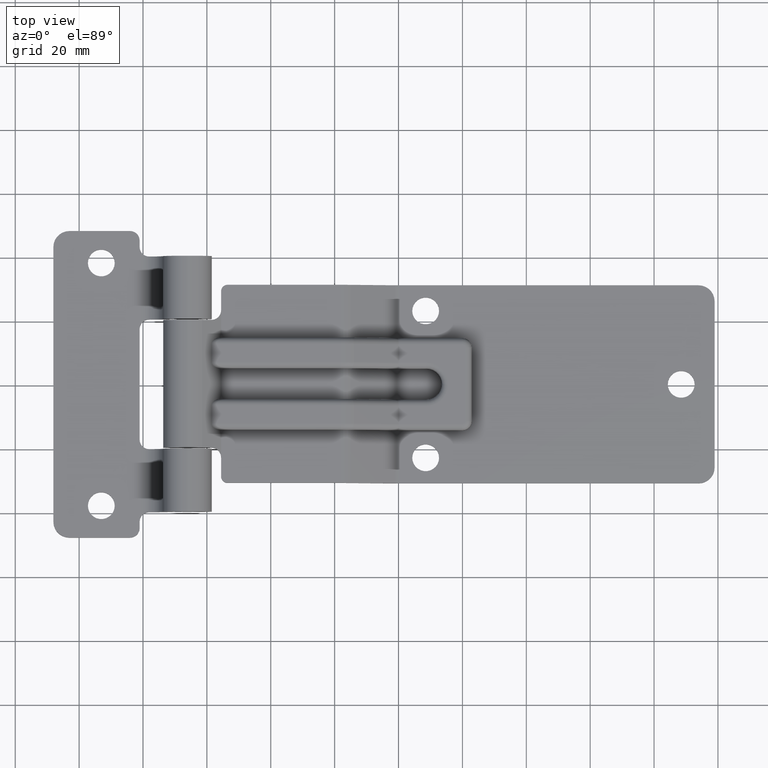
[diagram: clean part render]
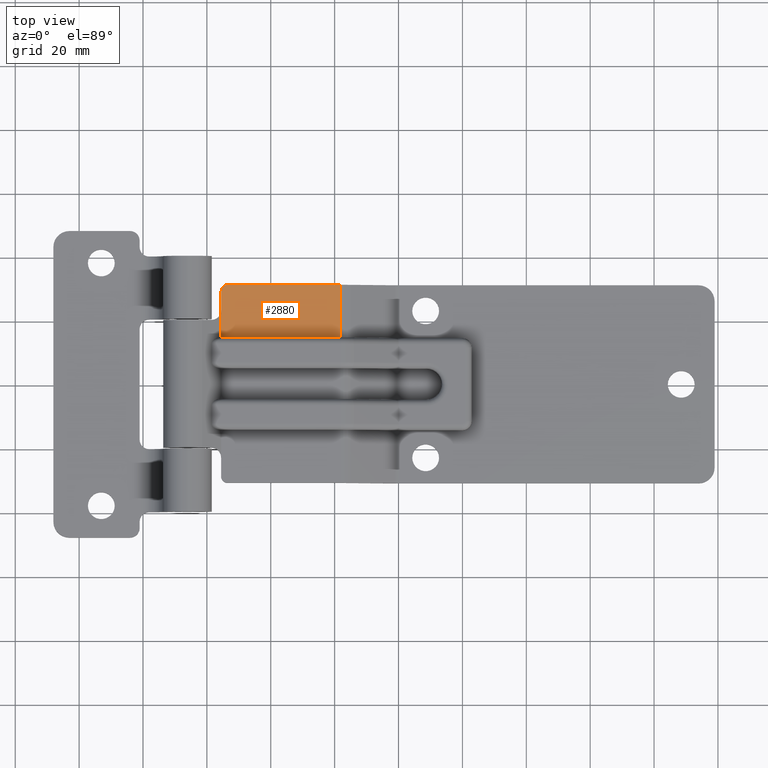
[diagram: same view with one face highlighted and labeled with its STEP entity id]
A machine part, top view. The second image highlights one B-rep face of the part: STEP entity #2880.
In plain terms, the highlighted planar face has unit normal (0, 0, 1).
Its self-contained STEP definition (entity closure, byte-faithful):
#53 = LINE ( 'NONE', #1579, #2407 ) ;
#56 = AXIS2_PLACEMENT_3D ( 'NONE', #2533, #2769, #2763 ) ;
#181 = CARTESIAN_POINT ( 'NONE',  ( 2.000000000000000000, 31.00000000000000000, 4.000000000000000000 ) ) ;
#418 = EDGE_CURVE ( 'NONE', #2000, #2606, #2965, .T. ) ;
#875 = CARTESIAN_POINT ( 'NONE',  ( 0.0000000000000000000, 28.99999999999999600, 4.000000000000000000 ) ) ;
#1049 = CARTESIAN_POINT ( 'NONE',  ( 37.46410161513775700, 14.50000000000000000, 3.999999999999997300 ) ) ;
#1055 = AXIS2_PLACEMENT_3D ( 'NONE', #2950, #4218, #2438 ) ;
#1068 = VECTOR ( 'NONE', #2029, 1000.000000000000000 ) ;
#1569 = DIRECTION ( 'NONE',  ( 0.0000000000000000000, 1.000000000000000000, 0.0000000000000000000 ) ) ;
#1578 = EDGE_CURVE ( 'NONE', #3695, #2044, #3146, .T. ) ;
#1579 = CARTESIAN_POINT ( 'NONE',  ( 0.0000000000000000000, -31.00000000000000000, 4.000000000000000000 ) ) ;
#1705 = ORIENTED_EDGE ( 'NONE', *, *, #4560, .T. ) ;
#1721 = ORIENTED_EDGE ( 'NONE', *, *, #4088, .F. ) ;
#1830 = ORIENTED_EDGE ( 'NONE', *, *, #418, .F. ) ;
#1961 = DIRECTION ( 'NONE',  ( -1.000000000000000000, -0.0000000000000000000, -0.0000000000000000000 ) ) ;
#1992 = VECTOR ( 'NONE', #3321, 1000.000000000000000 ) ;
#2000 = VERTEX_POINT ( 'NONE', #1049 ) ;
#2018 = CARTESIAN_POINT ( 'NONE',  ( 0.0000000000000000000, 31.00000000000000000, 4.000000000000000000 ) ) ;
#2029 = DIRECTION ( 'NONE',  ( 1.000000000000000000, 0.0000000000000000000, 0.0000000000000000000 ) ) ;
#2044 = VERTEX_POINT ( 'NONE', #875 ) ;
#2099 = LINE ( 'NONE', #2111, #1992 ) ;
#2111 = CARTESIAN_POINT ( 'NONE',  ( 0.0000000000000000000, -31.00000000000000000, 4.000000000000000000 ) ) ;
#2185 = DIRECTION ( 'NONE',  ( 0.0000000000000000000, 1.000000000000000000, 0.0000000000000000000 ) ) ;
#2195 = CARTESIAN_POINT ( 'NONE',  ( 37.46410161513775700, -31.00000000000000000, 3.999999999999997300 ) ) ;
#2339 = CARTESIAN_POINT ( 'NONE',  ( 37.46410161513775700, 31.00000000000000000, 3.999999999999997300 ) ) ;
#2402 = CARTESIAN_POINT ( 'NONE',  ( -4.000000000000000000, 14.50000000000000000, 3.999999999999997300 ) ) ;
#2407 = VECTOR ( 'NONE', #1569, 1000.000000000000000 ) ;
#2438 = DIRECTION ( 'NONE',  ( 1.000000000000000000, 0.0000000000000000000, 0.0000000000000000000 ) ) ;
#2533 = CARTESIAN_POINT ( 'NONE',  ( 0.0000000000000000000, -31.00000000000000000, 4.000000000000000000 ) ) ;
#2535 = VERTEX_POINT ( 'NONE', #4176 ) ;
#2606 = VERTEX_POINT ( 'NONE', #3884 ) ;
#2763 = DIRECTION ( 'NONE',  ( 1.000000000000000000, 0.0000000000000000000, -0.0000000000000000000 ) ) ;
#2769 = DIRECTION ( 'NONE',  ( 0.0000000000000000000, 0.0000000000000000000, 1.000000000000000000 ) ) ;
#2790 = PLANE ( 'NONE',  #56 ) ;
#2827 = FACE_OUTER_BOUND ( 'NONE', #3188, .T. ) ;
#2880 = ADVANCED_FACE ( 'NONE', ( #2827 ), #2790, .T. ) ;
#2950 = CARTESIAN_POINT ( 'NONE',  ( 2.000000000000000000, 28.99999999999999600, 4.000000000000000000 ) ) ;
#2965 = LINE ( 'NONE', #2402, #4346 ) ;
#3146 = CIRCLE ( 'NONE', #1055, 2.000000000000000000 ) ;
#3188 = EDGE_LOOP ( 'NONE', ( #1830, #1705, #3245, #3437, #3929, #1721 ) ) ;
#3245 = ORIENTED_EDGE ( 'NONE', *, *, #3250, .F. ) ;
#3250 = EDGE_CURVE ( 'NONE', #3695, #4506, #4054, .T. ) ;
#3253 = VECTOR ( 'NONE', #2185, 1000.000000000000000 ) ;
#3321 = DIRECTION ( 'NONE',  ( 0.0000000000000000000, 1.000000000000000000, 0.0000000000000000000 ) ) ;
#3348 = EDGE_CURVE ( 'NONE', #2535, #2044, #53, .T. ) ;
#3437 = ORIENTED_EDGE ( 'NONE', *, *, #1578, .T. ) ;
#3695 = VERTEX_POINT ( 'NONE', #181 ) ;
#3884 = CARTESIAN_POINT ( 'NONE',  ( 0.0000000000000000000, 14.50000000000000000, 4.000000000000000000 ) ) ;
#3929 = ORIENTED_EDGE ( 'NONE', *, *, #3348, .F. ) ;
#3950 = LINE ( 'NONE', #2195, #3253 ) ;
#4054 = LINE ( 'NONE', #2018, #1068 ) ;
#4088 = EDGE_CURVE ( 'NONE', #2606, #2535, #2099, .T. ) ;
#4176 = CARTESIAN_POINT ( 'NONE',  ( 0.0000000000000000000, 23.00000000000000000, 4.000000000000000000 ) ) ;
#4218 = DIRECTION ( 'NONE',  ( 0.0000000000000000000, 0.0000000000000000000, 1.000000000000000000 ) ) ;
#4346 = VECTOR ( 'NONE', #1961, 1000.000000000000000 ) ;
#4506 = VERTEX_POINT ( 'NONE', #2339 ) ;
#4560 = EDGE_CURVE ( 'NONE', #2000, #4506, #3950, .T. ) ;